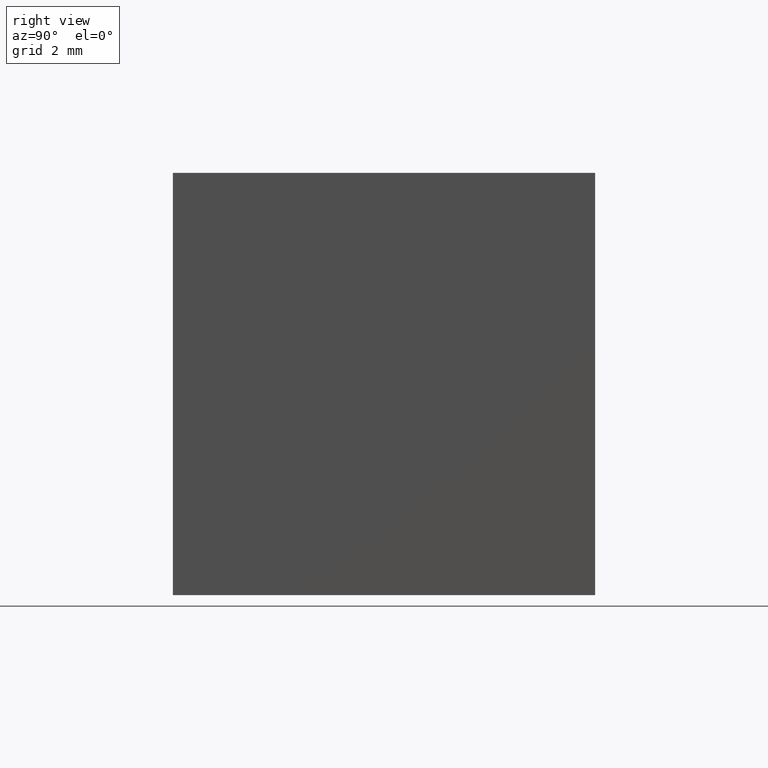
[diagram: clean part render]
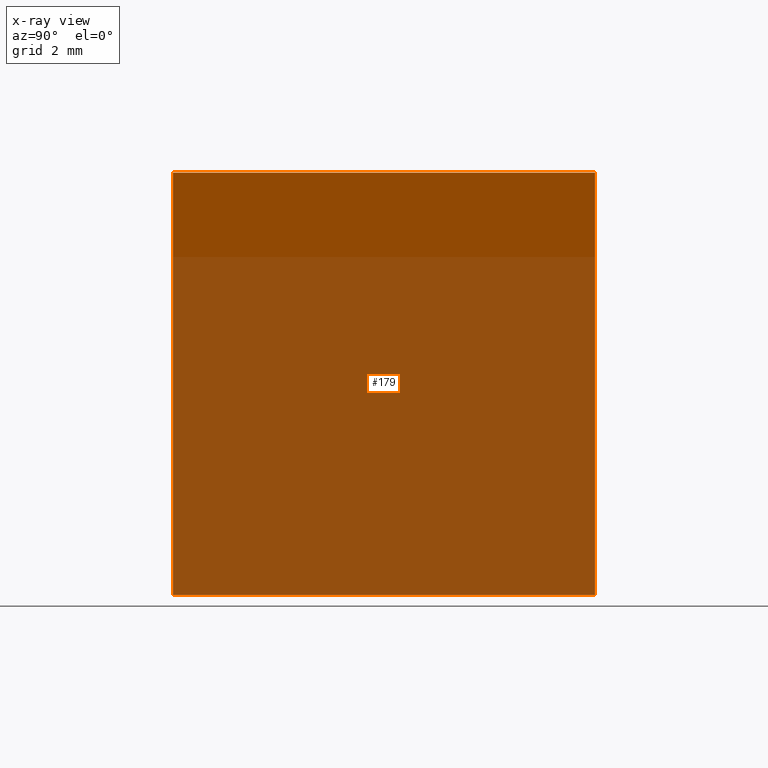
[diagram: x-ray — body ghosted, one internal face saturated and labeled with its STEP entity id]
A machine part, right view, then the same camera in x-ray: the body is ghosted and one INTERNAL B-rep face — a face not visible from any outside direction — is saturated and labeled: STEP entity #179.
In plain terms, the highlighted planar face has unit normal (0.7071, 0, -0.7071).
Its self-contained STEP definition (entity closure, byte-faithful):
#3 = LINE ( 'NONE', #285, #12 ) ;
#12 = VECTOR ( 'NONE', #87, 1000.000000000000000 ) ;
#16 = LINE ( 'NONE', #101, #190 ) ;
#24 = CARTESIAN_POINT ( 'NONE',  ( -12.69999999999999900, 12.69999999999999900, -12.69999999999999800 ) ) ;
#41 = PLANE ( 'NONE',  #136 ) ;
#43 = LINE ( 'NONE', #152, #223 ) ;
#55 = DIRECTION ( 'NONE',  ( -0.0000000000000000000, -1.000000000000000000, -0.0000000000000000000 ) ) ;
#56 = CARTESIAN_POINT ( 'NONE',  ( -12.69999999999999900, 0.0000000000000000000, -12.69999999999999800 ) ) ;
#57 = FACE_OUTER_BOUND ( 'NONE', #91, .T. ) ;
#61 = DIRECTION ( 'NONE',  ( 0.7071067811865475700, 0.0000000000000000000, 0.7071067811865474600 ) ) ;
#75 = LINE ( 'NONE', #105, #253 ) ;
#87 = DIRECTION ( 'NONE',  ( -0.0000000000000000000, -1.000000000000000000, -0.0000000000000000000 ) ) ;
#91 = EDGE_LOOP ( 'NONE', ( #147, #199, #161, #97 ) ) ;
#96 = CARTESIAN_POINT ( 'NONE',  ( 0.0000000000000000000, 12.69999999999999900, 0.0000000000000000000 ) ) ;
#97 = ORIENTED_EDGE ( 'NONE', *, *, #233, .T. ) ;
#101 = CARTESIAN_POINT ( 'NONE',  ( -12.69999999999999900, 12.69999999999999900, -12.69999999999999800 ) ) ;
#105 = CARTESIAN_POINT ( 'NONE',  ( -12.69999999999999900, 12.69999999999999900, -12.69999999999999800 ) ) ;
#123 = VERTEX_POINT ( 'NONE', #267 ) ;
#128 = DIRECTION ( 'NONE',  ( -0.7071067811865475700, 0.0000000000000000000, -0.7071067811865474600 ) ) ;
#130 = EDGE_CURVE ( 'NONE', #291, #123, #43, .T. ) ;
#136 = AXIS2_PLACEMENT_3D ( 'NONE', #24, #298, #128 ) ;
#147 = ORIENTED_EDGE ( 'NONE', *, *, #130, .T. ) ;
#149 = DIRECTION ( 'NONE',  ( 0.7071067811865475700, 0.0000000000000000000, 0.7071067811865474600 ) ) ;
#152 = CARTESIAN_POINT ( 'NONE',  ( -12.69999999999999900, 0.0000000000000000000, -12.69999999999999800 ) ) ;
#161 = ORIENTED_EDGE ( 'NONE', *, *, #187, .F. ) ;
#179 = ADVANCED_FACE ( 'NONE', ( #57 ), #41, .F. ) ;
#181 = VERTEX_POINT ( 'NONE', #96 ) ;
#187 = EDGE_CURVE ( 'NONE', #203, #181, #75, .T. ) ;
#190 = VECTOR ( 'NONE', #55, 1000.000000000000000 ) ;
#193 = EDGE_CURVE ( 'NONE', #181, #123, #3, .T. ) ;
#199 = ORIENTED_EDGE ( 'NONE', *, *, #193, .F. ) ;
#203 = VERTEX_POINT ( 'NONE', #244 ) ;
#223 = VECTOR ( 'NONE', #61, 1000.000000000000000 ) ;
#233 = EDGE_CURVE ( 'NONE', #203, #291, #16, .T. ) ;
#244 = CARTESIAN_POINT ( 'NONE',  ( -12.69999999999999900, 12.69999999999999900, -12.69999999999999800 ) ) ;
#253 = VECTOR ( 'NONE', #149, 1000.000000000000000 ) ;
#267 = CARTESIAN_POINT ( 'NONE',  ( 0.0000000000000000000, 0.0000000000000000000, 0.0000000000000000000 ) ) ;
#285 = CARTESIAN_POINT ( 'NONE',  ( 0.0000000000000000000, 12.69999999999999900, 0.0000000000000000000 ) ) ;
#291 = VERTEX_POINT ( 'NONE', #56 ) ;
#298 = DIRECTION ( 'NONE',  ( 0.7071067811865474600, 0.0000000000000000000, -0.7071067811865475700 ) ) ;